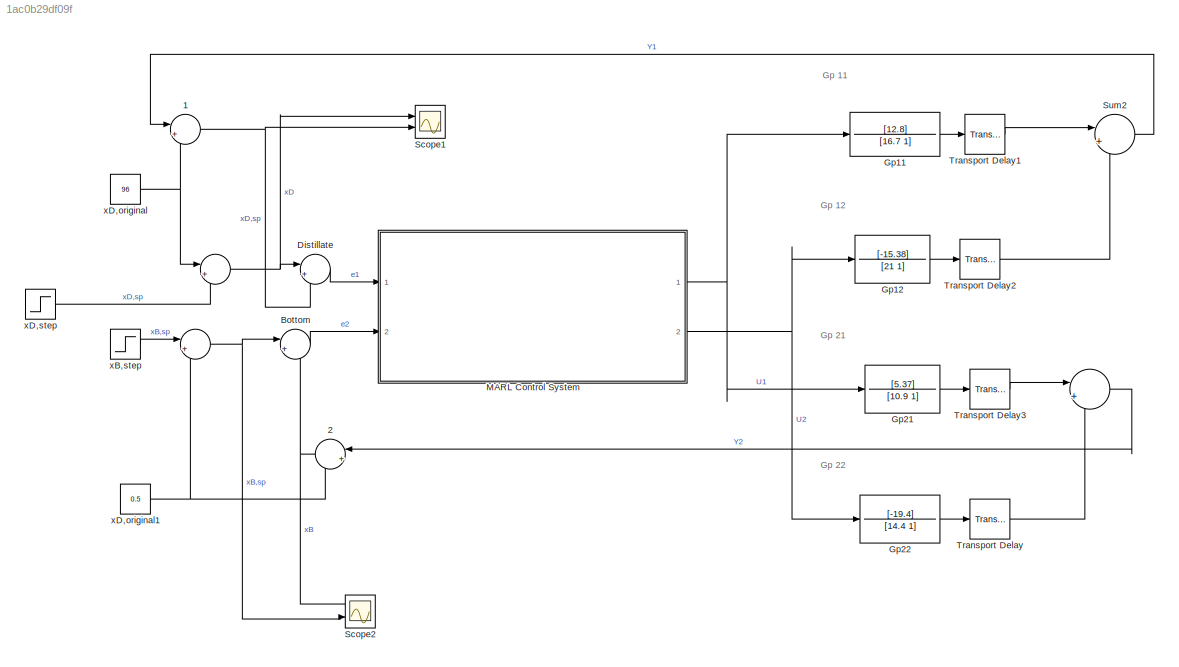
MODEL slx_1ac0b29df09f
KIND model
CONFIG AbsTol = auto
CONFIG EnableMultiTasking = off
CONFIG FixedStep = auto
CONFIG MaxStep = auto
CONFIG MinStep = auto
CONFIG RelTol = 1e-3
CONFIG SampleTimeConstraint = Unconstrained
CONFIG SolverName = VariableStepAuto
CONFIG StartTime = 0.0
CONFIG StopTime = 30
BLOCK [Sum]  
  Inputs = |++
  Ports = [2, 1]
BLOCK [Sum]      
  Inputs = |++
  NameLocation = top
  Ports = [2, 1]
BLOCK [Sum]         
  Inputs = |++
  Ports = [2, 1]
BLOCK [Sum]         1
  Inputs = |++
  Ports = [2, 1]
BLOCK [Sum]         2
  Inputs = |++
  Ports = [2, 1]
BLOCK [Sum] Bottom
  Inputs = |+-
  Ports = [2, 1]
BLOCK [Sum] Distillate
  Inputs = |+-
  NameLocation = top
  Ports = [2, 1]
BLOCK [TransferFcn] Gp11
  Denominator = [16.7 1]
  Numerator = [12.8]
BLOCK [TransferFcn] Gp12
  Denominator = [21 1]
  Numerator = [-15.38]
BLOCK [TransferFcn] Gp21
  Denominator = [10.9 1]
  Numerator = [5.37]
BLOCK [TransferFcn] Gp22
  Denominator = [14.4 1]
  Numerator = [-19.4]
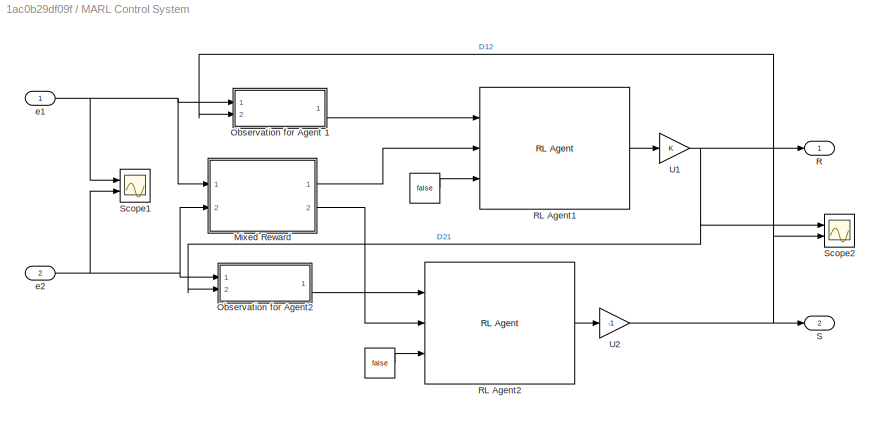
BLOCK [SubSystem] MARL Control System
  Ports = [2, 2]
  RequestExecContextInheritance = off
BLOCK [Constant] MARL Control System/       
  NameLocation = right
  Value = false
BLOCK [Constant] MARL Control System/            
  NameLocation = right
  Value = false
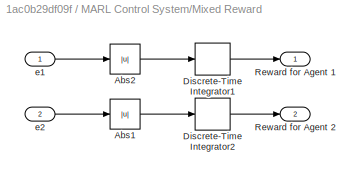
BLOCK [SubSystem] MARL Control System/Mixed Reward
  Ports = [2, 2]
  RequestExecContextInheritance = off
BLOCK [Abs] MARL Control System/Mixed Reward/Abs1
  SaturateOnIntegerOverflow = off
BLOCK [Abs] MARL Control System/Mixed Reward/Abs2
  SaturateOnIntegerOverflow = off
BLOCK [DiscreteIntegrator] MARL Control System/Mixed Reward/Discrete-Time Integrator1
  ICPrevOutput = DiscIntNeverNeededParam
  ICPrevScaledInput = DiscIntNeverNeededParam
  InitialConditionSetting = Auto
  Ports = [1, 1]
  SampleTime = -1
  gainval = 0.2
BLOCK [DiscreteIntegrator] MARL Control System/Mixed Reward/Discrete-Time Integrator2
  ICPrevOutput = DiscIntNeverNeededParam
  ICPrevScaledInput = DiscIntNeverNeededParam
  InitialConditionSetting = Auto
  Ports = [1, 1]
  SampleTime = -1
  gainval = 0.2
BLOCK [Outport] MARL Control System/Mixed Reward/Reward for Agent 1
BLOCK [Outport] MARL Control System/Mixed Reward/Reward for Agent 2
  Port = 2
BLOCK [Inport] MARL Control System/Mixed Reward/e1 
BLOCK [Inport] MARL Control System/Mixed Reward/e2
  Port = 2
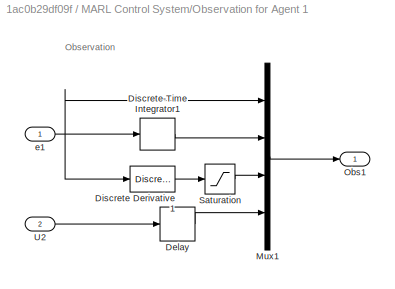
BLOCK [SubSystem] MARL Control System/Observation for Agent 1
  Ports = [2, 1]
  RequestExecContextInheritance = off
BLOCK [Delay] MARL Control System/Observation for Agent 1/Delay
  DelayLength = 1
  InitialCondition = 0
  InputPortMap = u0
  Ports = [1, 1]
BLOCK [Reference] MARL Control System/Observation for Agent 1/Discrete Derivative1  REF=simulink/Discrete/Discrete Derivative
  Ports = [1, 1]
  SourceBlock = simulink/Discrete/Discrete Derivative
  SourceProductBaseCode = SL
  SourceType = Discrete Derivative
BLOCK [DiscreteIntegrator] MARL Control System/Observation for Agent 1/Discrete-Time Integrator1
  ICPrevOutput = DiscIntNeverNeededParam
  ICPrevScaledInput = DiscIntNeverNeededParam
  InitialConditionSetting = Auto
  Ports = [1, 1]
  SampleTime = -1
  gainval = 0.2
BLOCK [Mux] MARL Control System/Observation for Agent 1/Mux1
  DisplayOption = bar
  Ports = [4, 1]
BLOCK [Outport] MARL Control System/Observation for Agent 1/Obs1
BLOCK [Saturate] MARL Control System/Observation for Agent 1/Saturation
  LinearizeAsGain = off
  ZeroCross = off
BLOCK [Inport] MARL Control System/Observation for Agent 1/U2
  Port = 2
BLOCK [Inport] MARL Control System/Observation for Agent 1/e1
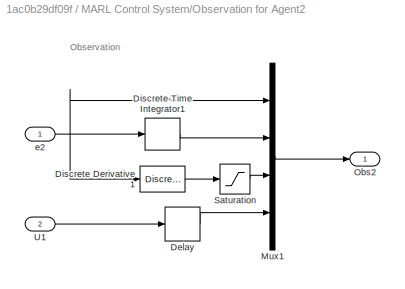
BLOCK [SubSystem] MARL Control System/Observation for Agent2
  Ports = [2, 1]
  RequestExecContextInheritance = off
BLOCK [Delay] MARL Control System/Observation for Agent2/Delay
  DelayLength = 1
  InitialCondition = 0
  InputPortMap = u0
  Ports = [1, 1]
BLOCK [Reference] MARL Control System/Observation for Agent2/Discrete Derivative1  REF=simulink/Discrete/Discrete Derivative
  Ports = [1, 1]
  SourceBlock = simulink/Discrete/Discrete Derivative
  SourceProductBaseCode = SL
  SourceType = Discrete Derivative
BLOCK [DiscreteIntegrator] MARL Control System/Observation for Agent2/Discrete-Time Integrator1
  ICPrevOutput = DiscIntNeverNeededParam
  ICPrevScaledInput = DiscIntNeverNeededParam
  InitialConditionSetting = Auto
  Ports = [1, 1]
  SampleTime = -1
  gainval = 1/8
BLOCK [Mux] MARL Control System/Observation for Agent2/Mux1
  DisplayOption = bar
  Ports = [4, 1]
BLOCK [Outport] MARL Control System/Observation for Agent2/Obs2
BLOCK [Saturate] MARL Control System/Observation for Agent2/Saturation
  LinearizeAsGain = off
  ZeroCross = off
BLOCK [Inport] MARL Control System/Observation for Agent2/U1
  Port = 2
BLOCK [Inport] MARL Control System/Observation for Agent2/e2
BLOCK [Outport] MARL Control System/R
BLOCK [Reference] MARL Control System/RL Agent1  REF=rllib/RL Agent
  Ports = [3, 1]
  SourceBlock = rllib/RL Agent
  SourceProductBaseCode = RL
  SourceType = RL Agent
BLOCK [Reference] MARL Control System/RL Agent2  REF=rllib/RL Agent
  Ports = [3, 1]
  SourceBlock = rllib/RL Agent
  SourceProductBaseCode = RL
  SourceType = RL Agent
BLOCK [Outport] MARL Control System/S
  Port = 2
BLOCK [Scope] MARL Control System/Scope1
  Floating = off
  NumInputPorts = 2
  Ports = [2]
  ScopeSpecificationString = Simulink.scopes.TimeScopeBlockCfg('CurrentConfiguration', extmgr.ConfigurationSet(extmgr.Configuration('Core','General UI',true,'FigureColor',[1 1 1]),extmgr.Configuration('Core','Source UI',true),extmgr.Configuration('Sources','WiredSimulink',true,'DataLoggingVariableName','ScopeData1'),extmgr.Configuration('Visuals','Time Domain',true,'SerializedDisplays',{struct('MinYLimReal','-0.32474','MaxYLi...<+1866ch>
BLOCK [Scope] MARL Control System/Scope2
  Floating = off
  NumInputPorts = 2
  Ports = [2]
  ScopeSpecificationString = Simulink.scopes.TimeScopeBlockCfg('CurrentConfiguration', extmgr.ConfigurationSet(extmgr.Configuration('Core','General UI',true),extmgr.Configuration('Core','Source UI',true),extmgr.Configuration('Sources','WiredSimulink',true,'DataLoggingVariableName','ScopeData1'),extmgr.Configuration('Visuals','Time Domain',true,'SerializedDisplays',{struct('MinYLimReal','-1.72741','MaxYLimReal','1.36793','YLab...<+1491ch>
BLOCK [Gain] MARL Control System/U1
BLOCK [Gain] MARL Control System/U2
  Gain = -1
BLOCK [Inport] MARL Control System/e1
BLOCK [Inport] MARL Control System/e2
  Port = 2
BLOCK [Scope] Scope1
  Floating = off
  NumInputPorts = 2
  Ports = [2]
  ScopeSpecificationString = Simulink.scopes.TimeScopeBlockCfg('CurrentConfiguration', extmgr.ConfigurationSet(extmgr.Configuration('Core','General UI',true,'FigureColor',[1 1 1]),extmgr.Configuration('Core','Source UI',true),extmgr.Configuration('Sources','WiredSimulink',true,'DataLoggingVariableName','ScopeData2'),extmgr.Configuration('Visuals','Time Domain',true,'SerializedDisplays',{struct('MinYLimReal','95.8624','MaxYLim...<+1860ch>
BLOCK [Scope] Scope2
  Floating = off
  NumInputPorts = 2
  Ports = [2]
  ScopeSpecificationString = Simulink.scopes.TimeScopeBlockCfg('CurrentConfiguration', extmgr.ConfigurationSet(extmgr.Configuration('Core','General UI',true,'FigureColor',[1 1 1]),extmgr.Configuration('Core','Source UI',true),extmgr.Configuration('Sources','WiredSimulink',true,'DataLoggingVariableName','ScopeData1'),extmgr.Configuration('Visuals','Time Domain',true,'SerializedDisplays',{struct('MinYLimReal','0.31243','MaxYLim...<+2539ch>
BLOCK [Sum] Sum2
  Inputs = |++
  Ports = [2, 1]
BLOCK [TransportDelay] Transport Delay
  DelayTime = 3
  Ports = [1, 1]
BLOCK [TransportDelay] Transport Delay1
  Ports = [1, 1]
BLOCK [TransportDelay] Transport Delay2
  DelayTime = 3
  Ports = [1, 1]
BLOCK [TransportDelay] Transport Delay3
  DelayTime = 2
  Ports = [1, 1]
BLOCK [Step] xB,step
  SampleTime = 0
  Time = 2
  ZeroCross = off
BLOCK [Constant] xD,original
  Value = 96
BLOCK [Constant] xD,original1
  Value = 0.5
BLOCK [Step] xD,step
  After = 0
  SampleTime = 0
  Time = 2
  ZeroCross = off
ANNOTATION (root): Gp 11
ANNOTATION (root): Gp 12
ANNOTATION (root): Gp 21
ANNOTATION (root): Gp 22
ANNOTATION MARL Control System/Observation for Agent 1: Observation
ANNOTATION MARL Control System/Observation for Agent2: Observation
NET         1:1 -> Distillate:2, Scope1:2
NET         2:1 -> Bottom:2, Scope2:1
NET         :1 -> Distillate:1, Scope1:1
NET      :1 -> Bottom:1, Scope2:2
LINE  :1 ->         2:1
LINE Bottom:1 -> MARL Control System:2
LINE Distillate:1 -> MARL Control System:1
LINE Gp11:1 -> Transport Delay1:1
LINE Gp12:1 -> Transport Delay2:1
LINE Gp21:1 -> Transport Delay3:1
LINE Gp22:1 -> Transport Delay:1
LINE MARL Control System/            :1 -> MARL Control System/RL Agent1:3
LINE MARL Control System/       :1 -> MARL Control System/RL Agent2:3
LINE MARL Control System/Mixed Reward/Abs1:1 -> MARL Control System/Mixed Reward/Discrete-Time Integrator2:1
LINE MARL Control System/Mixed Reward/Abs2:1 -> MARL Control System/Mixed Reward/Discrete-Time Integrator1:1
LINE MARL Control System/Mixed Reward/Discrete-Time Integrator1:1 -> MARL Control System/Mixed Reward/Reward for Agent 1:1
LINE MARL Control System/Mixed Reward/Discrete-Time Integrator2:1 -> MARL Control System/Mixed Reward/Reward for Agent 2:1
LINE MARL Control System/Mixed Reward/e1 :1 -> MARL Control System/Mixed Reward/Abs2:1
LINE MARL Control System/Mixed Reward/e2:1 -> MARL Control System/Mixed Reward/Abs1:1
LINE MARL Control System/Mixed Reward:1 -> MARL Control System/RL Agent1:2
LINE MARL Control System/Mixed Reward:2 -> MARL Control System/RL Agent2:2
LINE MARL Control System/Observation for Agent 1/Delay:1 -> MARL Control System/Observation for Agent 1/Mux1:4
LINE MARL Control System/Observation for Agent 1/Discrete Derivative1:1 -> MARL Control System/Observation for Agent 1/Saturation:1
LINE MARL Control System/Observation for Agent 1/Discrete-Time Integrator1:1 -> MARL Control System/Observation for Agent 1/Mux1:2
LINE MARL Control System/Observation for Agent 1/Mux1:1 -> MARL Control System/Observation for Agent 1/Obs1:1
LINE MARL Control System/Observation for Agent 1/Saturation:1 -> MARL Control System/Observation for Agent 1/Mux1:3
LINE MARL Control System/Observation for Agent 1/U2:1 -> MARL Control System/Observation for Agent 1/Delay:1
NET MARL Control System/Observation for Agent 1/e1:1 -> MARL Control System/Observation for Agent 1/Discrete Derivative1:1, MARL Control System/Observation for Agent 1/Discrete-Time Integrator1:1, MARL Control System/Observation for Agent 1/Mux1:1
LINE MARL Control System/Observation for Agent 1:1 -> MARL Control System/RL Agent1:1
LINE MARL Control System/Observation for Agent2/Delay:1 -> MARL Control System/Observation for Agent2/Mux1:4
LINE MARL Control System/Observation for Agent2/Discrete Derivative1:1 -> MARL Control System/Observation for Agent2/Saturation:1
LINE MARL Control System/Observation for Agent2/Discrete-Time Integrator1:1 -> MARL Control System/Observation for Agent2/Mux1:2
LINE MARL Control System/Observation for Agent2/Mux1:1 -> MARL Control System/Observation for Agent2/Obs2:1
LINE MARL Control System/Observation for Agent2/Saturation:1 -> MARL Control System/Observation for Agent2/Mux1:3
LINE MARL Control System/Observation for Agent2/U1:1 -> MARL Control System/Observation for Agent2/Delay:1
NET MARL Control System/Observation for Agent2/e2:1 -> MARL Control System/Observation for Agent2/Discrete Derivative1:1, MARL Control System/Observation for Agent2/Discrete-Time Integrator1:1, MARL Control System/Observation for Agent2/Mux1:1
LINE MARL Control System/Observation for Agent2:1 -> MARL Control System/RL Agent2:1
LINE MARL Control System/RL Agent1:1 -> MARL Control System/U1:1
LINE MARL Control System/RL Agent2:1 -> MARL Control System/U2:1
NET MARL Control System/U1:1 -> MARL Control System/Observation for Agent2:2, MARL Control System/R:1, MARL Control System/Scope2:1
NET MARL Control System/U2:1 -> MARL Control System/Observation for Agent 1:2, MARL Control System/S:1, MARL Control System/Scope2:2
NET MARL Control System/e1:1 -> MARL Control System/Mixed Reward:1, MARL Control System/Observation for Agent 1:1, MARL Control System/Scope1:1
NET MARL Control System/e2:1 -> MARL Control System/Mixed Reward:2, MARL Control System/Observation for Agent2:1, MARL Control System/Scope1:2
NET MARL Control System:1 -> Gp11:1, Gp21:1
NET MARL Control System:2 -> Gp12:1, Gp22:1
LINE Sum2:1 ->         1:1
LINE Transport Delay1:1 -> Sum2:1
LINE Transport Delay2:1 -> Sum2:2
LINE Transport Delay3:1 ->  :1
LINE Transport Delay:1 ->  :2
LINE xB,step:1 ->      :1
NET xD,original1:1 ->         2:2,      :2
NET xD,original:1 ->         1:2,         :1
LINE xD,step:1 ->         :2
note: NET lines group one-source signal fan-out (src -> all destinations, sorted); 1:1 wires keep LINE
